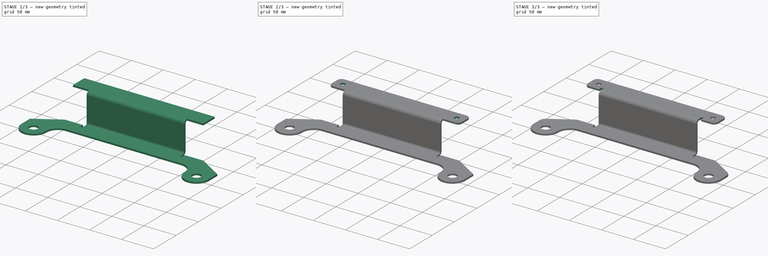
[diagram: build sequence overview — one tinted view per stage of 3, left to right]
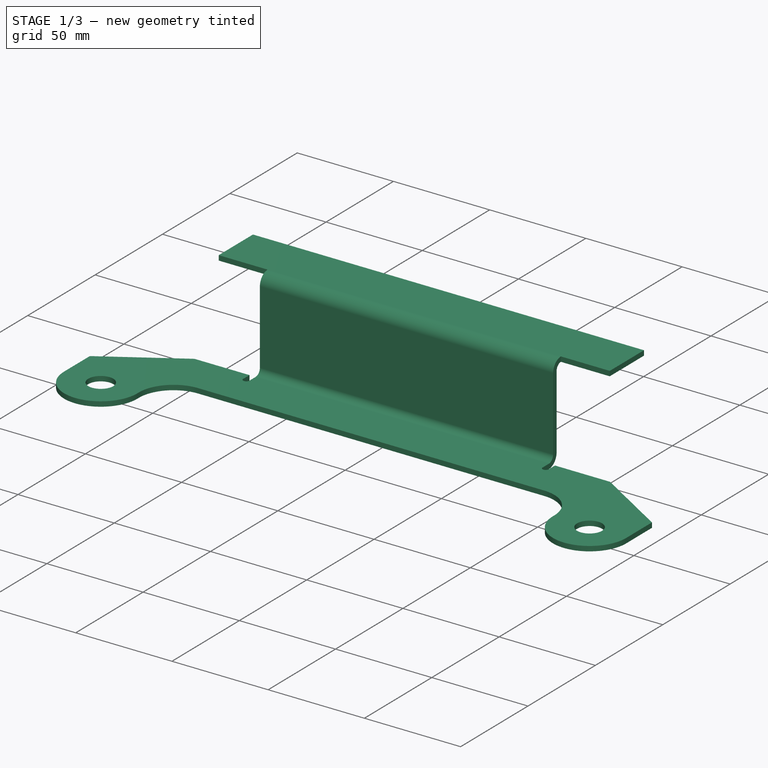
[diagram: stage 1 of 3 — iso view after this stage's code; geometry added in this stage tinted green]
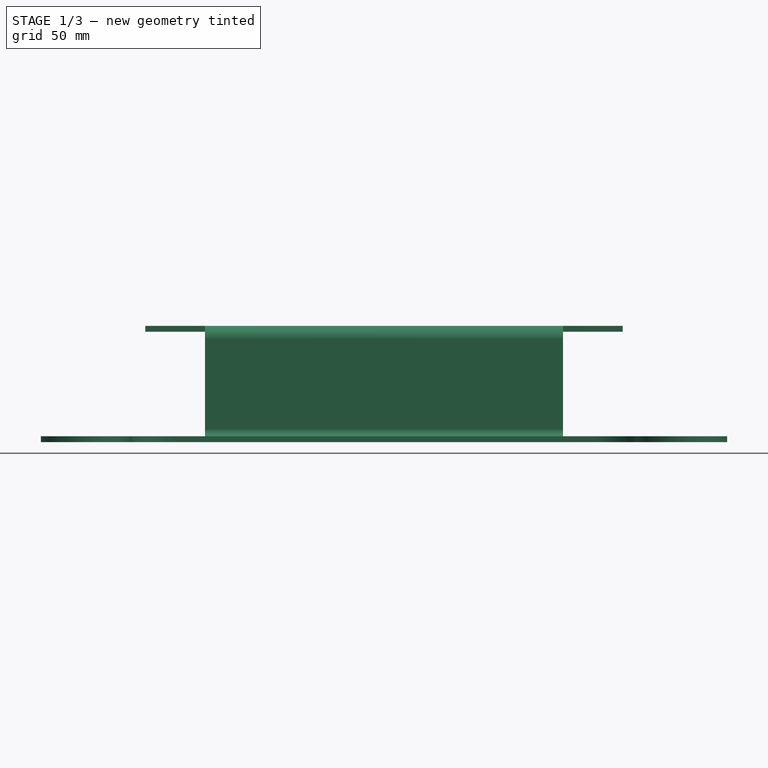
[diagram: stage 1 of 3 — front view after this stage's code; geometry added in this stage tinted green]
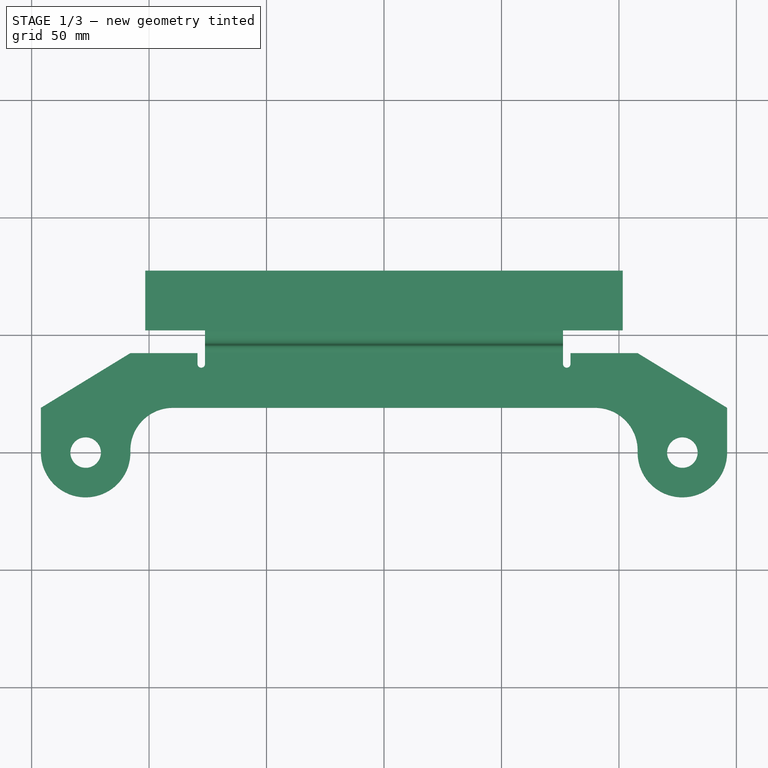
[diagram: stage 1 of 3 — top view after this stage's code; geometry added in this stage tinted green]
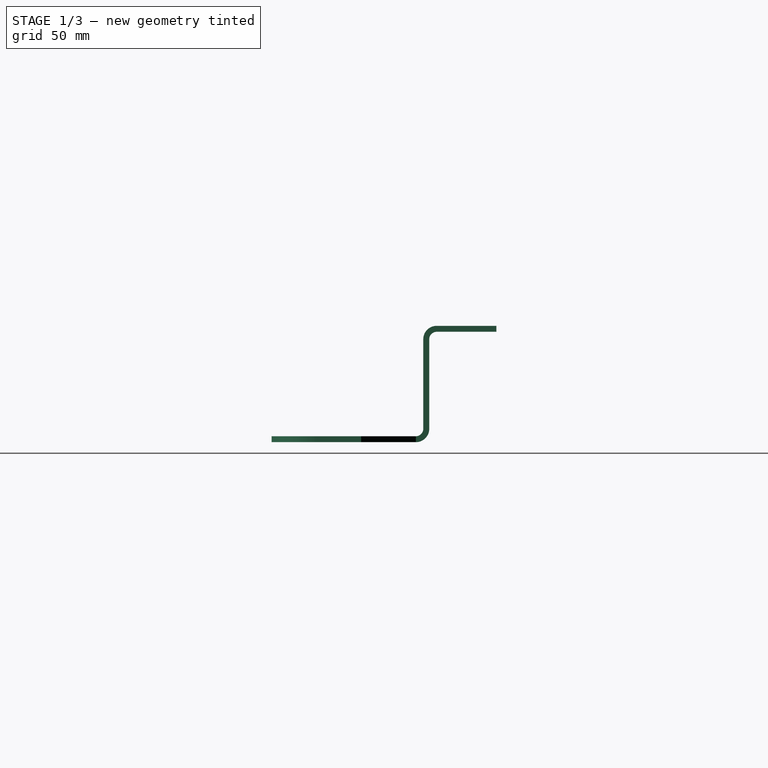
[diagram: stage 1 of 3 — right view after this stage's code; geometry added in this stage tinted green]
FCSTD DOCUMENT  (FreeCAD 1.0R39109 (Git))
Label: hawse-license-plate-bracket
License: All rights reserved
LicenseURL: https://en.wikipedia.org/wiki/All_rights_reserved
objects: Sketcher::SketchObject×4, PartDesign::Fillet×3, PartDesign::FeaturePython×2, PartDesign::Pocket×2, PartDesign::Pad×1, Spreadsheet::Sheet×1, PartDesign::Body×1, Part::Feature×1
note: 32 computed .brp shape members not serialized (recipe doc carries the construction recipe); baked Part::Feature solids carry a one-line shape summary decoded from their .brp

FEATURE [Sketcher::SketchObject] Sketch
  ArcFitTolerance = 1e-06
  AttachmentSupport = -> [XY_Plane001]
  FullyConstrained = true
  MakeInternals = false
  MapMode = 5
  expr: Constraints[12] = <<Spreadsheet>>.fairlead_slot_diam / 2
  expr: Constraints[14] = <<Spreadsheet>>.fairlead_slot_length
  expr: Constraints[21] = <<Spreadsheet>>.groove_fairlead_height / 2 + <<Spreadsheet>>.sheetmetal_bend_radius - 3 mm
  expr: Constraints[2] = <<Spreadsheet>>.fairlead_mount_hole_diam
  expr: Constraints[55] = <<Spreadsheet>>.fairlead_slot_diam / 2 - 1 mm
  sketch-geometry (22):
    g0: Circle CenterX=-127 CenterY=0 CenterZ=0 NormalX=0 NormalY=0 NormalZ=1 AngleXU=0 Radius=6.5
    g1: Circle CenterX=127 CenterY=0 CenterZ=0 NormalX=0 NormalY=0 NormalZ=1 AngleXU=0 Radius=6.5
    g2: LineSegment StartX=-146.05 StartY=2.3e-15 StartZ=0 EndX=-146.05 EndY=19.05 EndZ=0
    g3: ArcOfCircle [constr] CenterX=-88.9 CenterY=7e-16 CenterZ=0 NormalX=0 NormalY=0 NormalZ=1 AngleXU=0 Radius=19.05 StartAngle=1.5708 EndAngle=4.71239
    g4: ArcOfCircle [constr] CenterX=88.9 CenterY=-7e-16 CenterZ=0 NormalX=0 NormalY=0 NormalZ=1 AngleXU=0 Radius=19.05 StartAngle=4.71239 EndAngle=7.85398
    g5: LineSegment [constr] StartX=-88.9 StartY=19.05 StartZ=0 EndX=88.9 EndY=19.05 EndZ=0
    g6: LineSegment [constr] StartX=-88.9 StartY=-19.05 StartZ=0 EndX=88.9 EndY=-19.05 EndZ=0
    g7: LineSegment StartX=-107.95 StartY=-4.7e-15 StartZ=0 EndX=-107.95 EndY=1 EndZ=0
    g8: LineSegment StartX=-89.9 StartY=19.05 StartZ=0 EndX=89.9 EndY=19.05 EndZ=0
    g9: LineSegment StartX=107.95 StartY=1 StartZ=0 EndX=107.95 EndY=2.3e-15 EndZ=0
    g10: LineSegment StartX=-107.95 StartY=42.339 StartZ=0 EndX=107.95 EndY=42.339 EndZ=0
    g11: LineSegment StartX=146.05 StartY=19.05 StartZ=0 EndX=146.05 EndY=-3.6e-15 EndZ=0
    g12: GeomPoint [constr] X=-146.05 Y=42.339 Z=0
    g13: ArcOfCircle CenterX=-89.9 CenterY=1 CenterZ=0 NormalX=0 NormalY=0 NormalZ=1 AngleXU=0 Radius=18.05 StartAngle=1.5708 EndAngle=3.14159
    g14: GeomPoint [constr] X=-107.95 Y=19.05 Z=0
    g15: ArcOfCircle CenterX=89.9 CenterY=1 CenterZ=0 NormalX=0 NormalY=0 NormalZ=1 AngleXU=0 Radius=18.05 StartAngle=0 EndAngle=1.5708
    g16: GeomPoint [constr] X=107.95 Y=19.05 Z=0
    g17: GeomPoint [constr] X=146.05 Y=42.339 Z=0
    g18: ArcOfCircle CenterX=-127 CenterY=0 CenterZ=0 NormalX=0 NormalY=0 NormalZ=1 AngleXU=0 Radius=19.05 StartAngle=3.14159 EndAngle=6.28319
    g19: ArcOfCircle CenterX=127 CenterY=0 CenterZ=0 NormalX=0 NormalY=0 NormalZ=1 AngleXU=0 Radius=19.05 StartAngle=3.14159 EndAngle=6.28319
    g20: LineSegment StartX=-146.05 StartY=19.05 StartZ=0 EndX=-107.95 EndY=42.339 EndZ=0
    g21: LineSegment StartX=146.05 StartY=19.05 StartZ=0 EndX=107.95 EndY=42.339 EndZ=0
  constraints (58):
    c: PointOnObject(g1,g-1)
    c: DistanceX(g0,g1) = 254  'distance between fairlead mount holes'
    c: Diameter(g0) = 13
    c: Symmetric(g0,g1,g-2)
    c: Equal(g0,g1)
    c: Vertical(g2)
    c: Tangent(g3,g5) = 1.5708
    c: Tangent(g3,g6) = -1.5708
    c: Tangent(g4,g5) = 1.5708
    c: Tangent(g4,g6) = -1.5708
    c: Equal(g3,g4)
    c: Horizontal(g6)
    c: Radius(g4) = 19.05
    c: Symmetric(g3,g4,g-1)
    c: DistanceX(g6,g6) = 177.8
    c: PointOnObject(g7,g-1)
    c: Vertical(g7)
    c: PointOnObject(g9,g-1)
    c: Vertical(g9)
    c: Symmetric(g14,g16,g-2)
    c: Symmetric(g2,g7,g0)
    c: DistanceY(g2,g12) = 42.339
    c: Horizontal(g10)
    c: Vertical(g11)
    c: Symmetric(g9,g11,g1)
    c: PointOnObject(g12,g2)
    c: PointOnObject(g12,g10)
    c: PointOnObject(g14,g7)
    c: PointOnObject(g14,g8)
    c: Tangent(g7,g13) = 1.5708
    c: Tangent(g8,g13) = 1.5708
    c: PointOnObject(g16,g8)
    c: PointOnObject(g16,g9)
    c: Tangent(g8,g15) = 1.5708
    c: Tangent(g9,g15) = 1.5708
    c: PointOnObject(g17,g10)
    c: PointOnObject(g17,g11)
    c: Equal(g15,g13)
    c: Distance(g10,g8) = 23.289
    c: Coincident(g18,g2)
    c: Coincident(g18,g7)
    c: Coincident(g19,g9)
    c: Coincident(g19,g11)
    c: PointOnObject(g19,g-1)
    c: PointOnObject(g18,g-1)
    c: PointOnObject(g8,g5)
    c: PointOnObject(g7,g3)
    c: PointOnObject(g2,g8)
    c: PointOnObject(g10,g7)
    c: PointOnObject(g10,g9)
    c: PointOnObject(g11,g8)
    c: Coincident(g20,g2)
    c: Coincident(g20,g10)
    c: Coincident(g21,g11)
    c: Coincident(g21,g10)
    c: Radius(g13) = 18.05
    c: DistanceY(g2,g2) = 19.05
    c: DistanceX(g10,g10) = 215.9  'top_length'
FEATURE [PartDesign::Pad] Pad  label="main back plate"
  Direction = (0,0,1)
  Length = 2.54
  Length2 = 10
  Profile = -> Sketch
  ReferenceAxis = -> Sketch [N_Axis]
  Refine = true
  Suppressed = false
  Type = 0
FEATURE [PartDesign::FeaturePython] Bend  label="first bend forward"  # WARN: FeaturePython — macro-defined, semantics opaque (R4)
  AutoMiter = true
  BaseFeature = -> Pad
  BendType = 0
  LengthList = [38.1]
  LengthSpec = 0
  NonperforationMaxLength = 5
  Perforate = false
  PerforationAngle = 0
  PerforationInitialLength = 5
  PerforationMaxLength = 5
  ReliefFactor = 0.7
  Suppressed = false
  UseReliefFactor = false
  angle = 90
  baseObject = -> Pad [Face4]
  bendAList = [90]
  extend1 = 0
  extend2 = 0
  gap1 = 31.75
  gap2 = 31.75
  invert = false
  kfactor = 0.4
  length = 38.1
  maxExtendDist = 5
  minGap = 0.2
  minReliefGap = 1
  miterangle1 = 0
  miterangle2 = 0
  offset = 0
  radius = 3.175
  reliefType = 1
  reliefd = 6.223
  reliefw = 3.175
  sketchflip = false
  sketchinvert = false
  unfold = false
  expr: gap1 = (Sketch.Constraints.top_length - <<Spreadsheet>>.pass_through_width) / 2
  expr: gap2 = (Sketch.Constraints.top_length - <<Spreadsheet>>.pass_through_width) / 2
  expr: kfactor = <<Spreadsheet>>.sheetmetal_k_factor
  expr: length = <<Spreadsheet>>.pass_through_length
  expr: radius = <<Spreadsheet>>.sheetmetal_bend_radius
  expr: reliefd = <<Spreadsheet>>.bend_relief_cut_depth
  expr: reliefw = <<Spreadsheet>>.sheetmetal_bend_radius
FEATURE [PartDesign::FeaturePython] Bend002  label="bend up"  # WARN: FeaturePython — macro-defined, semantics opaque (R4)
  AutoMiter = true
  BaseFeature = -> Bend
  BendType = 0
  LengthList = [25.4]
  LengthSpec = 0
  NonperforationMaxLength = 5
  Perforate = false
  PerforationAngle = 0
  PerforationInitialLength = 5
  PerforationMaxLength = 5
  ReliefFactor = 0.7
  Suppressed = false
  UseReliefFactor = false
  angle = 90
  baseObject = -> Bend [Face32]
  bendAList = [90]
  extend1 = 25.4
  extend2 = 25.4
  gap1 = 0
  gap2 = 0
  invert = true
  kfactor = 0.4
  length = 25.4
  maxExtendDist = 5
  minGap = 0.2
  minReliefGap = 1
  miterangle1 = 0
  miterangle2 = 0
  offset = 0
  radius = 3.175
  reliefType = 1
  reliefd = 6.223
  reliefw = 3.175
  sketchflip = false
  sketchinvert = false
  unfold = false
  expr: extend1 = (<<Spreadsheet>>.top_width - <<Spreadsheet>>.pass_through_width) / 2
  expr: extend2 = (<<Spreadsheet>>.top_width - <<Spreadsheet>>.pass_through_width) / 2
  expr: kfactor = <<Spreadsheet>>.sheetmetal_k_factor
  expr: radius = <<Spreadsheet>>.sheetmetal_bend_radius
  expr: reliefd = 0.245 in
  expr: reliefw = 0.125 in
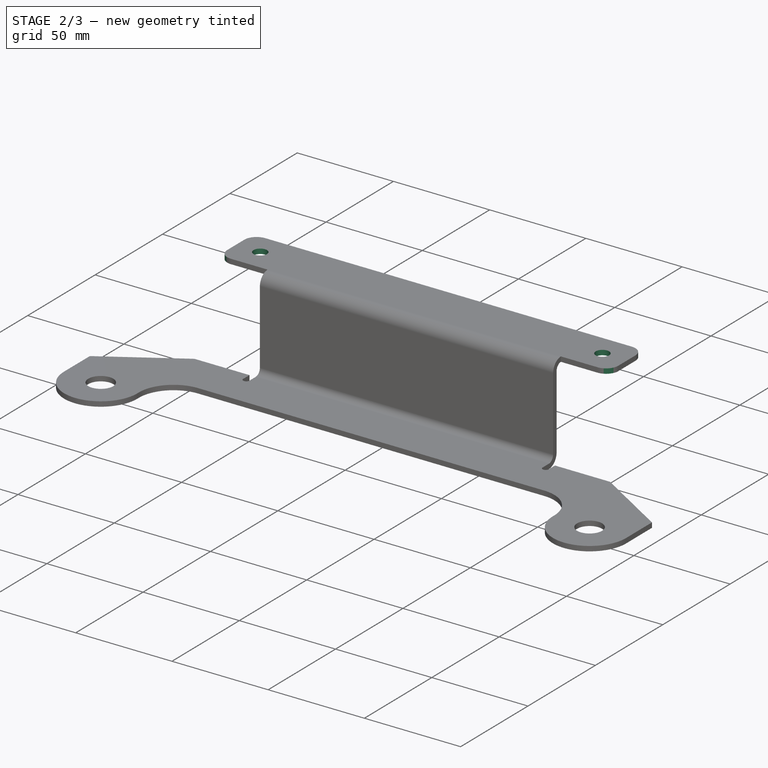
[diagram: stage 2 of 3 — iso view after this stage's code; geometry added in this stage tinted green]
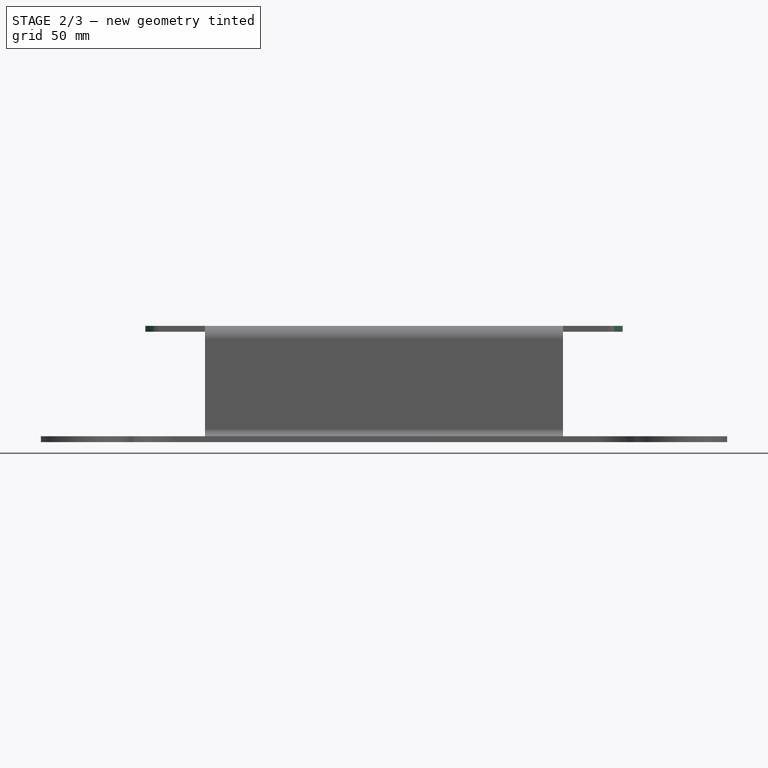
[diagram: stage 2 of 3 — front view after this stage's code; geometry added in this stage tinted green]
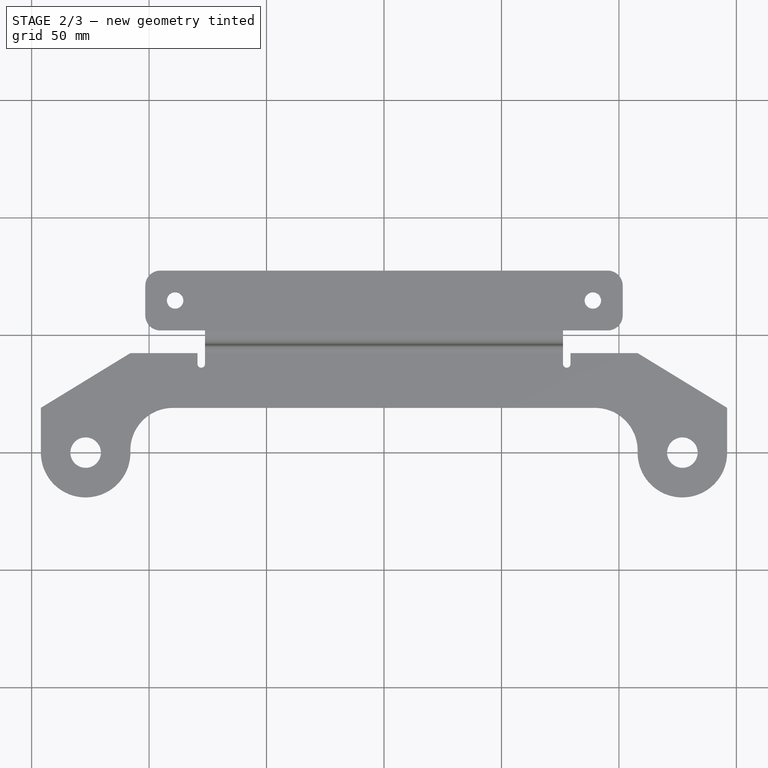
[diagram: stage 2 of 3 — top view after this stage's code; geometry added in this stage tinted green]
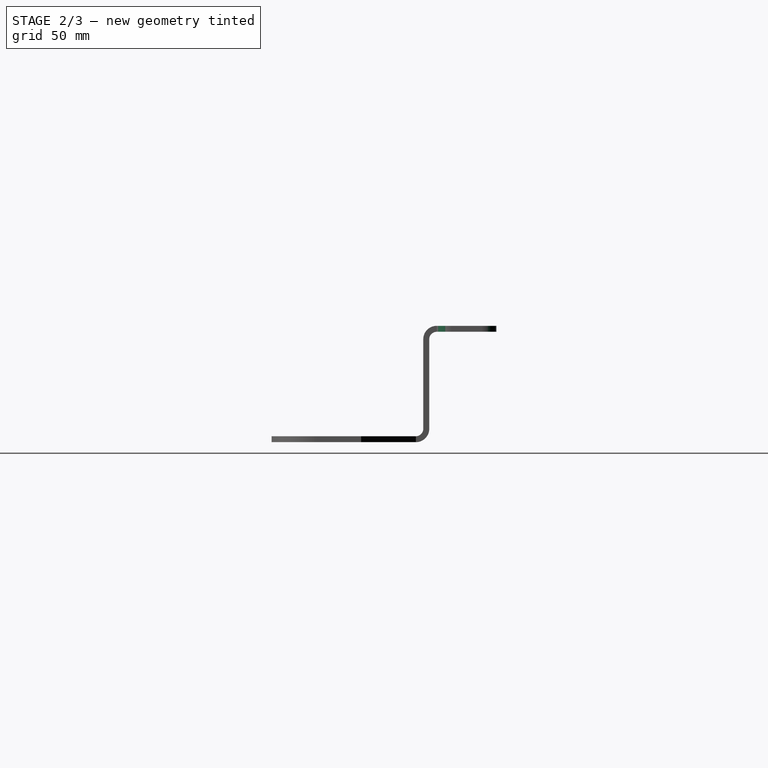
[diagram: stage 2 of 3 — right view after this stage's code; geometry added in this stage tinted green]
FEATURE [Sketcher::SketchObject] Sketch001
  ArcFitTolerance = 1e-06
  AttachmentSupport = -> [Bend002]
  ExternalGeometry = -> [Bend002]
  FullyConstrained = false
  MakeInternals = false
  MapMode = 5
  Placement = pos=(0,0,49.53) rot=(0,0,1;0rad)
  expr: Constraints[2] = <<Spreadsheet>>.license_plate_mount_hole_dist
  expr: Constraints[5] = <<Spreadsheet>>.license_plate_mount_hole_diam
  sketch-geometry (4):
    g0: Circle CenterX=-88.9 CenterY=63.929 CenterZ=0 NormalX=0 NormalY=0 NormalZ=1 AngleXU=0 Radius=3.5
    g1: Circle CenterX=88.9 CenterY=63.929 CenterZ=0 NormalX=0 NormalY=0 NormalZ=1 AngleXU=0 Radius=3.5
    g2: LineSegment [constr] StartX=-91.2676 StartY=63.929 StartZ=0 EndX=-88.9 EndY=63.929 EndZ=0
    g3: LineSegment [constr] StartX=-101.6 StartY=63.929 StartZ=0 EndX=-88.9 EndY=63.929 EndZ=0
  constraints (9):
    c: Equal(g1,g0)
    c: Symmetric(g0,g1,g-2)
    c: DistanceX(g0,g1) = 177.8
    c: Coincident(g2,g0)
    c: Horizontal(g2)
    c: Diameter(g0) = 7
    c: Coincident(g3,g0)
    c: Horizontal(g3)
    c: Symmetric(g-3,g-3,g3)
FEATURE [PartDesign::Pocket] Pocket  label="license plate mount holes"
  BaseFeature = -> Bend002
  Direction = (0,0,-1)
  Length = 5
  Length2 = 5
  Profile = -> Sketch001
  ReferenceAxis = -> Sketch001 [N_Axis]
  Refine = true
  Suppressed = false
  Type = 1
FEATURE [PartDesign::Fillet] Fillet  label="license plate mount plate fillets"
  Base = -> Pocket [Edge97,Edge102,Edge100,Edge101]
  BaseFeature = -> Pocket
  Radius = 6.35
  Refine = true
  SupportTransform = false
  Suppressed = false
  UseAllEdges = false
  expr: Radius = 0.25 in
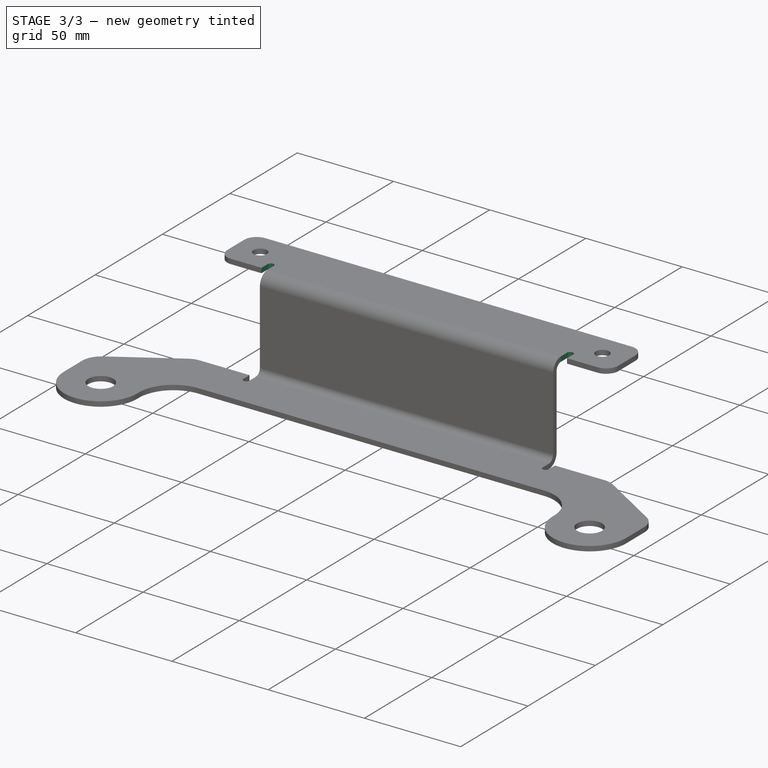
[diagram: stage 3 of 3 — iso view after this stage's code; geometry added in this stage tinted green]
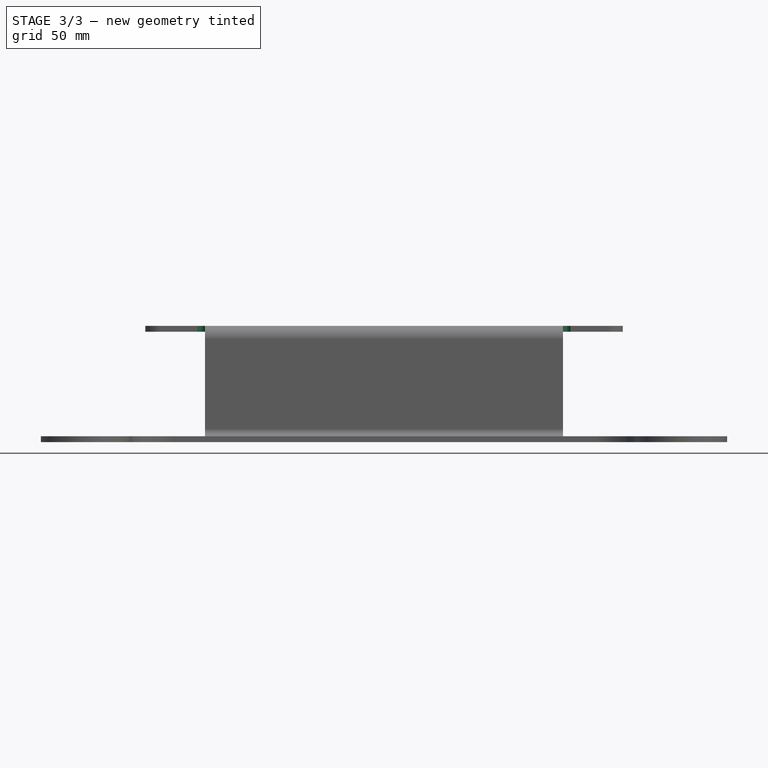
[diagram: stage 3 of 3 — front view after this stage's code; geometry added in this stage tinted green]
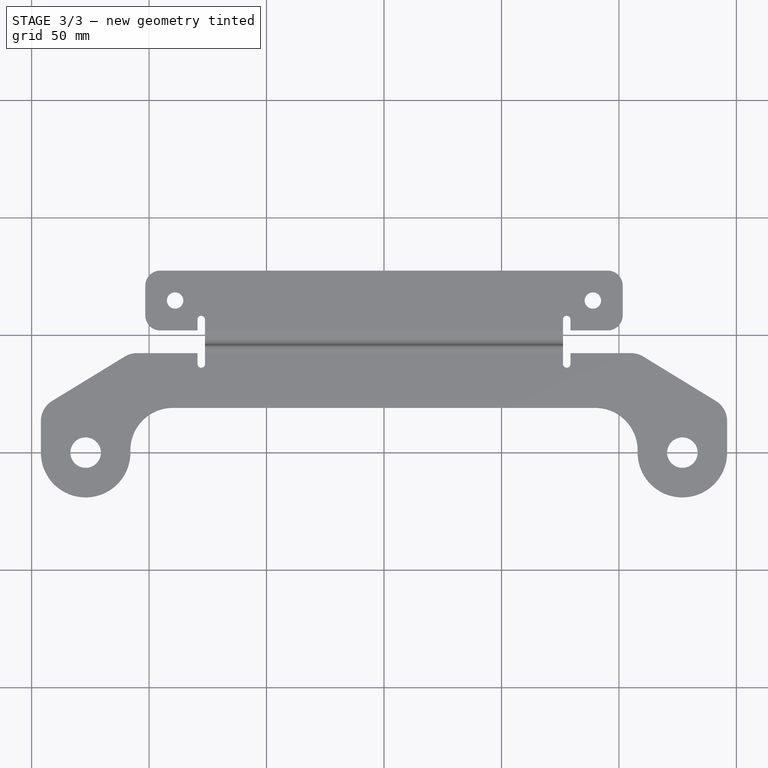
[diagram: stage 3 of 3 — top view after this stage's code; geometry added in this stage tinted green]
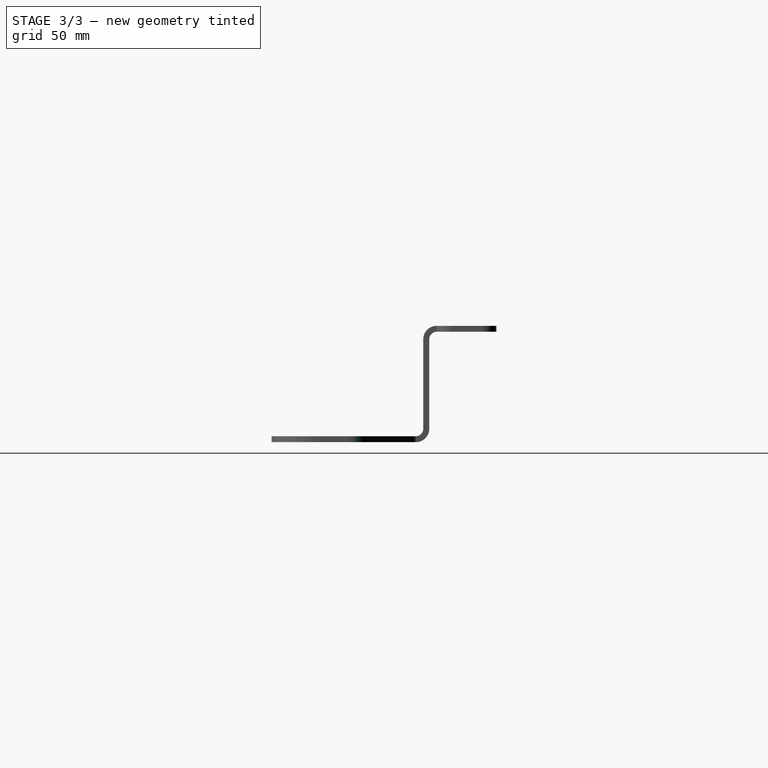
[diagram: stage 3 of 3 — right view after this stage's code; geometry added in this stage tinted green]
FEATURE [Sketcher::SketchObject] Sketch002
  ArcFitTolerance = 1e-06
  AttachmentSupport = -> [Fillet]
  ExternalGeometry = -> [Fillet]
  FullyConstrained = true
  MakeInternals = false
  MapMode = 5
  Placement = pos=(0,0,49.53) rot=(0,0,1;0rad)
  expr: Constraints[12] = <<Spreadsheet>>.sheetmetal_bend_radius
  expr: Constraints[15] = <<Spreadsheet>>.bend_relief_cut_depth - <<Spreadsheet>>.sheetmetal_bend_radius / 2
  sketch-geometry (8):
    g0: LineSegment StartX=-79.375 StartY=51.229 StartZ=0 EndX=-76.2 EndY=51.229 EndZ=0
    g1: LineSegment StartX=-76.2 StartY=51.229 StartZ=0 EndX=-76.2 EndY=55.8645 EndZ=0
    g2: LineSegment StartX=-79.375 StartY=55.8645 StartZ=0 EndX=-79.375 EndY=51.229 EndZ=0
    g3: LineSegment StartX=76.2 StartY=51.229 StartZ=0 EndX=79.375 EndY=51.229 EndZ=0
    g4: LineSegment StartX=79.375 StartY=51.229 StartZ=0 EndX=79.375 EndY=55.8645 EndZ=0
    g5: LineSegment StartX=76.2 StartY=55.8645 StartZ=0 EndX=76.2 EndY=51.229 EndZ=0
    g6: ArcOfCircle CenterX=-77.7875 CenterY=55.8645 CenterZ=0 NormalX=0 NormalY=0 NormalZ=1 AngleXU=0 Radius=1.5875 StartAngle=-9e-16 EndAngle=3.14159
    g7: ArcOfCircle CenterX=77.7875 CenterY=55.8645 CenterZ=0 NormalX=0 NormalY=0 NormalZ=1 AngleXU=0 Radius=1.5875 StartAngle=1e-16 EndAngle=3.14159
  constraints (23):
    c: Coincident(g0,g1)
    c: Coincident(g2,g0)
    c: Horizontal(g0)
    c: Vertical(g1)
    c: Vertical(g2)
    c: Coincident(g0,g-3)
    c: Coincident(g3,g4)
    c: Coincident(g5,g3)
    c: Horizontal(g3)
    c: Vertical(g4)
    c: Vertical(g5)
    c: Coincident(g3,g-4)
    c: DistanceX(g0,g0) = 3.175
    c: DistanceY(g-5,g-5) = 4.6355
    c: Coincident(g6,g2)
    c: Distance(g6,g0) = 4.6355
    c: Horizontal(g1,g2)
    c: Horizontal(g5,g4)
    c: Coincident(g7,g4)
    c: Tangent(g7,g5) = -1.5708
    c: Equal(g3,g0)
    c: Equal(g5,g1)
    c: Tangent(g6,g1) = -1.5708
FEATURE [PartDesign::Pocket] Pocket001  label="relief cuts"
  BaseFeature = -> Fillet
  Direction = (0,0,-1)
  Length = 5
  Length2 = 5
  Profile = -> Sketch002
  ReferenceAxis = -> Sketch002 [N_Axis]
  Refine = true
  Suppressed = false
  Type = 1
FEATURE [Spreadsheet::Sheet] Spreadsheet
  cells = A1='sheet metal thickness; B1(sheet_metal_thickness)==0.1 in; A2='bend radius; B2(sheetmetal_bend_radius)==0.125 in; A3='bend relief cut depth; B3(bend_relief_cut_depth)==0.245 in; A4='license plate mount hole dist; B4(license_plate_mount_hole_dist)==7 in; A5='fairlead mount hole dist; B5(fairlead_mount_hole_dist)==10 in; A6='fairlead mount hole diam; B6(fairlead_mount_hole_diam)==13 mm; A7='fairlead center slot length; B7(fairlead_slot_length)==7 in; A8='fairlead center slot diam; B8(fairlead_slot_diam)==1.5 in; A9='groove fairlead thickness; B9(groove_fairlead_thickness)==1.38 in; A10='groove fairlead ; B10(groove_fairlead_height)==3.32 in; A11='k factor; B11(sheetmetal_k_factor)=0.4; A12='license plate mount hole diam; B12(license_plate_mount_hole_diam)==7 mm; A13='pass through section width; B13(pass_through_width)==6 in; A14='pass through length; B14(pass_through_length)==1.5 in; A15='top width; B15(top_width)==8 in
FEATURE [PartDesign::Fillet] Fillet001
  Base = -> Pocket001 [Edge122,Edge120]
  BaseFeature = -> Pocket001
  Radius = 10
  Refine = true
  SupportTransform = false
  Suppressed = false
  UseAllEdges = false
FEATURE [PartDesign::Fillet] Fillet002
  Base = -> Fillet001 [Edge27,Edge78]
  BaseFeature = -> Fillet001
  Radius = 10
  Refine = true
  SupportTransform = false
  Suppressed = false
  UseAllEdges = false
FEATURE [PartDesign::Body] Body001
  AllowCompound = false
  Group = -> [Sketch,Pad,Bend,Sketch002,Bend002,Sketch001,Pocket,Fillet,Pocket001,Fillet001,Fillet002]
  Origin = -> Origin001
  Tip = -> Fillet002
FEATURE [Part::Feature] Unfold
  shape: bbox 292.1 x 138.1 x 2.54 mm, 42 faces (baked)
FEATURE [Sketcher::SketchObject] Unfold_Sketch
  ArcFitTolerance = 1e-06
  FullyConstrained = false
  MakeInternals = false
  sketch-geometry (42):
    g0: ArcOfCircle CenterX=95.25 CenterY=99.9554 CenterZ=0 NormalX=0 NormalY=0 NormalZ=1 AngleXU=-3.14159 Radius=6.35 StartAngle=1.5708 EndAngle=3.14159
    g1: LineSegment StartX=101.6 StartY=112.655 StartZ=0 EndX=101.6 EndY=99.9554 EndZ=0
    g2: ArcOfCircle CenterX=95.25 CenterY=112.655 CenterZ=0 NormalX=0 NormalY=0 NormalZ=1 AngleXU=-3.14159 Radius=6.35 StartAngle=3.14159 EndAngle=4.71239
    g3: LineSegment StartX=-95.25 StartY=119.005 StartZ=0 EndX=95.25 EndY=119.005 EndZ=0
    g4: ArcOfCircle CenterX=-95.25 CenterY=112.655 CenterZ=0 NormalX=0 NormalY=0 NormalZ=1 AngleXU=-3.14159 Radius=6.35 StartAngle=4.71239 EndAngle=6.28319
    g5: LineSegment StartX=-101.6 StartY=99.9554 StartZ=0 EndX=-101.6 EndY=112.655 EndZ=0
    g6: ArcOfCircle CenterX=-95.25 CenterY=99.9554 CenterZ=0 NormalX=0 NormalY=0 NormalZ=1 AngleXU=-3.14159 Radius=6.35 StartAngle=0 EndAngle=1.5708
    g7: LineSegment StartX=-79.375 StartY=93.6054 StartZ=0 EndX=-95.25 EndY=93.6054 EndZ=0
    g8: LineSegment StartX=-79.375 StartY=98.2409 StartZ=0 EndX=-79.375 EndY=93.6054 EndZ=0
    g9: ArcOfCircle CenterX=-77.7875 CenterY=98.2409 CenterZ=0 NormalX=0 NormalY=0 NormalZ=1 AngleXU=0 Radius=1.5875 StartAngle=-9e-16 EndAngle=3.14159
    g10: LineSegment StartX=-76.2 StartY=37.7035 StartZ=0 EndX=-76.2 EndY=98.2409 EndZ=0
    g11: ArcOfCircle CenterX=-77.7875 CenterY=37.7035 CenterZ=0 NormalX=0 NormalY=0 NormalZ=1 AngleXU=0 Radius=1.5875 StartAngle=3.14159 EndAngle=6.28319
    g12: LineSegment StartX=-79.375 StartY=37.7035 StartZ=0 EndX=-79.375 EndY=42.339 EndZ=0
    g13: LineSegment StartX=-105.136 StartY=42.339 StartZ=0 EndX=-79.375 EndY=42.339 EndZ=0
    g14: ArcOfCircle CenterX=-105.136 CenterY=32.339 CenterZ=0 NormalX=0 NormalY=0 NormalZ=1 AngleXU=-1.5708 Radius=10 StartAngle=3.14159 EndAngle=3.69025
    g15: LineSegment StartX=-141.265 StartY=21.9746 StartZ=0 EndX=-110.351 EndY=40.8713 EndZ=0
    g16: ArcOfCircle CenterX=-136.05 CenterY=13.4424 CenterZ=0 NormalX=0 NormalY=0 NormalZ=1 AngleXU=-1.5708 Radius=10 StartAngle=3.69025 EndAngle=4.71239
    g17: LineSegment StartX=-146.05 StartY=2.3e-15 StartZ=0 EndX=-146.05 EndY=13.4424 EndZ=0
    g18: ArcOfCircle CenterX=-127 CenterY=0 CenterZ=0 NormalX=0 NormalY=0 NormalZ=1 AngleXU=0 Radius=19.05 StartAngle=3.14159 EndAngle=6.28319
    g19: LineSegment StartX=-107.95 StartY=-4.7e-15 StartZ=0 EndX=-107.95 EndY=1 EndZ=0
    g20: ArcOfCircle CenterX=-89.9 CenterY=1 CenterZ=0 NormalX=0 NormalY=0 NormalZ=1 AngleXU=0 Radius=18.05 StartAngle=1.5708 EndAngle=3.14159
    g21: LineSegment StartX=-89.9 StartY=19.05 StartZ=0 EndX=89.9 EndY=19.05 EndZ=0
    g22: ArcOfCircle CenterX=89.9 CenterY=1 CenterZ=0 NormalX=0 NormalY=0 NormalZ=1 AngleXU=0 Radius=18.05 StartAngle=0 EndAngle=1.5708
    g23: LineSegment StartX=107.95 StartY=1 StartZ=0 EndX=107.95 EndY=2.1e-15 EndZ=0
    g24: ArcOfCircle CenterX=127 CenterY=0 CenterZ=0 NormalX=0 NormalY=0 NormalZ=1 AngleXU=0 Radius=19.05 StartAngle=3.14159 EndAngle=6.28319
    g25: LineSegment StartX=146.05 StartY=13.4424 StartZ=0 EndX=146.05 EndY=-5.3e-15 EndZ=0
    g26: ArcOfCircle CenterX=136.05 CenterY=13.4424 CenterZ=0 NormalX=0 NormalY=0 NormalZ=1 AngleXU=-1.5708 Radius=10 StartAngle=1.5708 EndAngle=2.59293
    g27: LineSegment StartX=141.265 StartY=21.9746 StartZ=0 EndX=110.351 EndY=40.8713 EndZ=0
    g28: ArcOfCircle CenterX=105.136 CenterY=32.339 CenterZ=0 NormalX=0 NormalY=0 NormalZ=1 AngleXU=-1.5708 Radius=10 StartAngle=2.59293 EndAngle=3.14159
    g29: LineSegment StartX=79.375 StartY=42.339 StartZ=0 EndX=105.136 EndY=42.339 EndZ=0
    g30: LineSegment StartX=79.375 StartY=42.339 StartZ=0 EndX=79.375 EndY=37.7035 EndZ=0
    g31: ArcOfCircle CenterX=77.7875 CenterY=37.7035 CenterZ=0 NormalX=0 NormalY=0 NormalZ=1 AngleXU=-4.5e-15 Radius=1.5875 StartAngle=3.14159 EndAngle=6.28319
    g32: LineSegment StartX=76.2 StartY=37.7035 StartZ=0 EndX=76.2 EndY=98.2409 EndZ=0
    g33: ArcOfCircle CenterX=77.7875 CenterY=98.2409 CenterZ=0 NormalX=0 NormalY=0 NormalZ=1 AngleXU=0 Radius=1.5875 StartAngle=0 EndAngle=3.14159
    g34: LineSegment StartX=79.375 StartY=93.6054 StartZ=0 EndX=79.375 EndY=98.2409 EndZ=0
    g35: LineSegment StartX=95.25 StartY=93.6054 StartZ=0 EndX=79.375 EndY=93.6054 EndZ=0
    g36: Circle CenterX=-127 CenterY=0 CenterZ=0 NormalX=0 NormalY=0 NormalZ=1 AngleXU=0 Radius=6.5
    g37: Circle CenterX=127 CenterY=0 CenterZ=0 NormalX=0 NormalY=0 NormalZ=1 AngleXU=0 Radius=6.5
    g38: Circle CenterX=-88.9 CenterY=106.305 CenterZ=0 NormalX=0 NormalY=0 NormalZ=1 AngleXU=0 Radius=3.5
    g39: Circle CenterX=88.9 CenterY=106.305 CenterZ=0 NormalX=0 NormalY=0 NormalZ=1 AngleXU=0 Radius=3.5
    g40: LineSegment StartX=-76.2 StartY=90.3138 StartZ=0 EndX=76.2 EndY=90.3138 EndZ=0
    g41: LineSegment StartX=-76.2 StartY=45.6306 StartZ=0 EndX=76.2 EndY=45.6306 EndZ=0
  constraints (36):
    c: Coincident(g17,g18)
    c: Coincident(g16,g17)
    c: Coincident(g15,g16)
    c: Coincident(g14,g15)
    c: Coincident(g18,g19)
    c: Coincident(g19,g20)
    c: Coincident(g13,g14)
    c: Coincident(g5,g6)
    c: Coincident(g4,g5)
    c: Coincident(g6,g7)
    c: Coincident(g3,g4)
    c: Coincident(g20,g21)
    c: Coincident(g11,g12)
    c: Coincident(g12,g13)
    c: Coincident(g7,g8)
    c: Coincident(g8,g9)
    c: Coincident(g10,g11)
    c: Coincident(g9,g10)
    c: Coincident(g31,g32)
    c: Coincident(g32,g33)
    c: Coincident(g30,g31)
    c: Coincident(g29,g30)
    c: Coincident(g34,g35)
    c: Coincident(g33,g34)
    c: Coincident(g21,g22)
    c: Coincident(g0,g35)
    c: Coincident(g2,g3)
    c: Coincident(g0,g1)
    c: Coincident(g1,g2)
    c: Coincident(g28,g29)
    c: Coincident(g23,g24)
    c: Coincident(g22,g23)
    c: Coincident(g27,g28)
    c: Coincident(g26,g27)
    c: Coincident(g24,g25)
    c: Coincident(g25,g26)
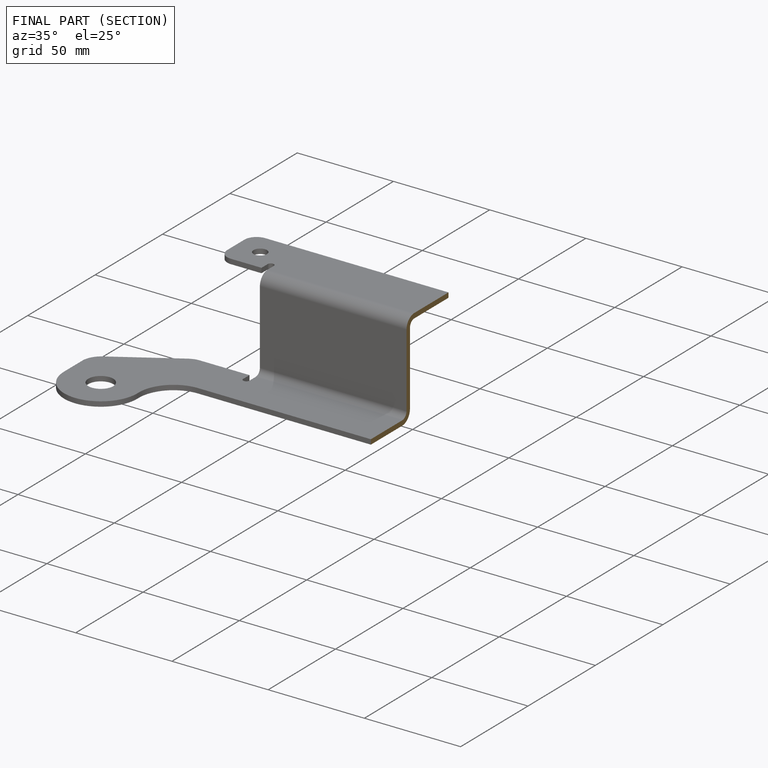
[diagram: finished part — half-section view (interior)]
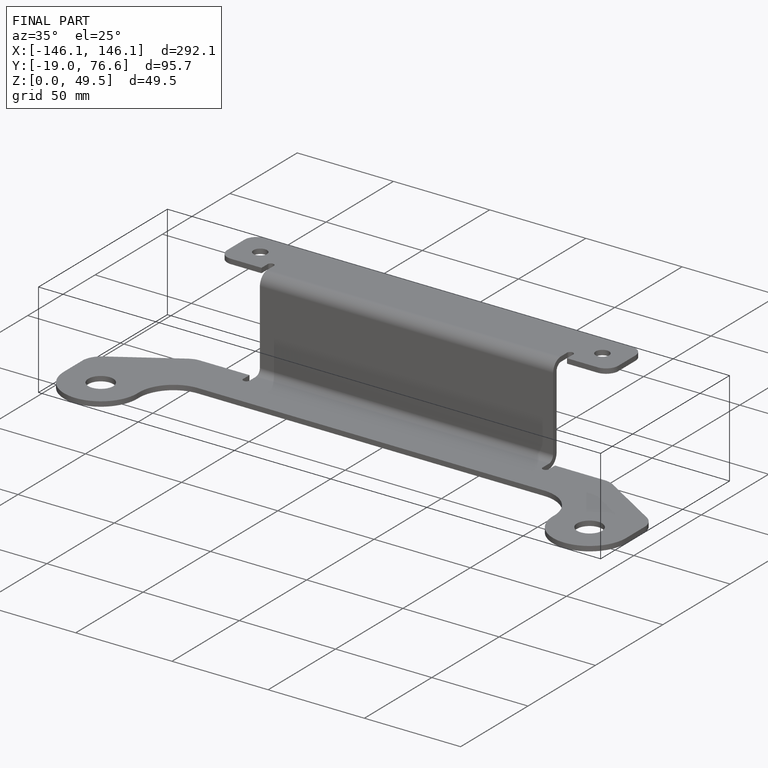
[diagram: finished part — iso view with bounding-box wireframe]
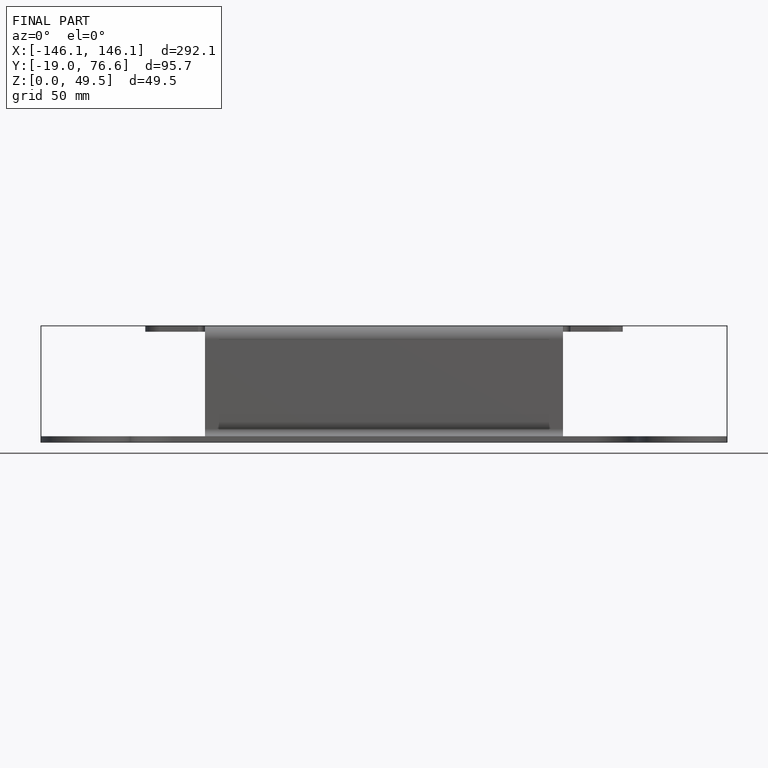
[diagram: finished part — front view with bounding-box wireframe]
